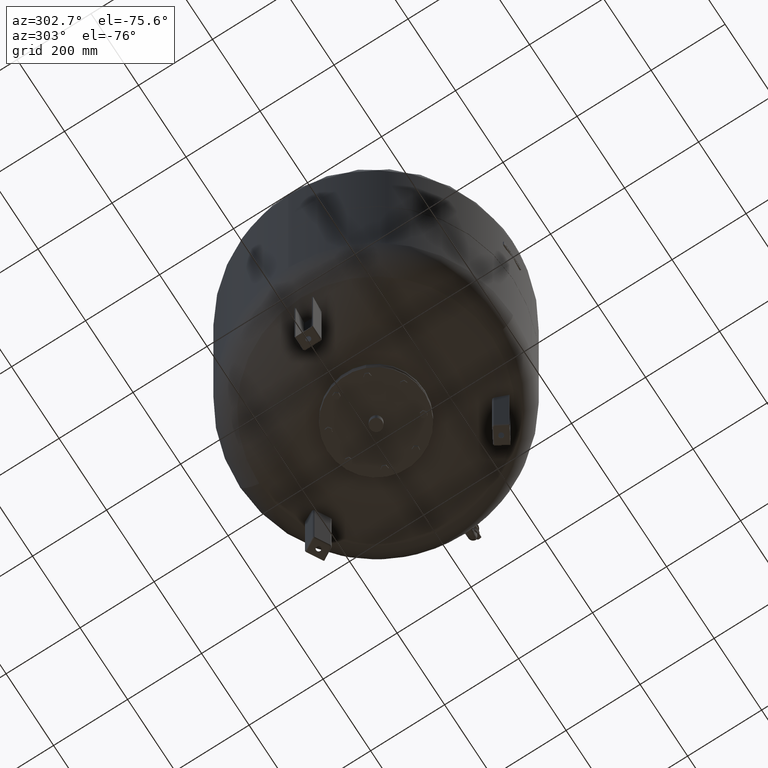
[diagram: clean part render]
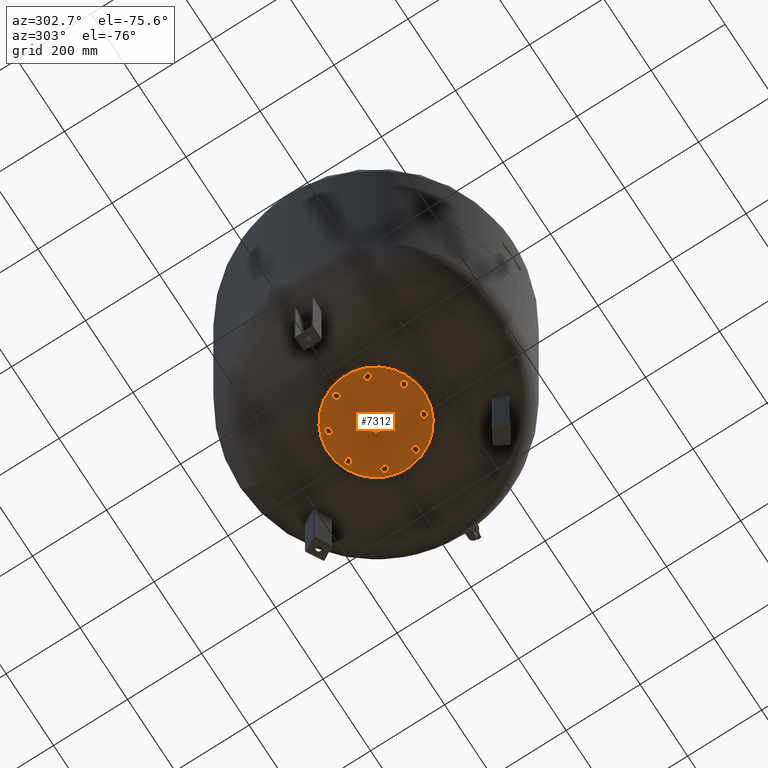
[diagram: same view with one face highlighted and labeled with its STEP entity id]
A machine part, auxiliary view. The second image highlights one B-rep face of the part: STEP entity #7312.
In plain terms, the highlighted planar face has unit normal (0, 0, 1).
Its self-contained STEP definition (entity closure, byte-faithful):
#3340=CARTESIAN_POINT('',(-120.104339226467270,-49.748846207461675,171.0));
#3341=VERTEX_POINT('',#3340);
#3350=CARTESIAN_POINT('',(120.104339226467290,49.748846207461661,171.0));
#3351=VERTEX_POINT('',#3350);
#3352=CARTESIAN_POINT('',(1.171630E-015,-2.828565E-015,171.0));
#3353=DIRECTION('',(0.0,0.0,1.0));
#3354=DIRECTION('',(-0.923879532511287,-0.382683432365090,0.0));
#3355=AXIS2_PLACEMENT_3D('',#3352,#3353,#3354);
#3356=CIRCLE('',#3355,130.0);
#3357=EDGE_CURVE('',#3341,#3351,#3356,.T.);
#3384=CARTESIAN_POINT('',(-15.567370122815184,-6.448215835351768,171.0));
#3385=VERTEX_POINT('',#3384);
#3401=CARTESIAN_POINT('',(15.567370122815188,6.448215835351761,171.0));
#3402=VERTEX_POINT('',#3401);
#3409=CARTESIAN_POINT('',(1.171630E-015,-2.828565E-015,171.0));
#3410=DIRECTION('',(0.0,0.0,1.0));
#3411=DIRECTION('',(-0.923879532511287,-0.382683432365090,0.0));
#3412=AXIS2_PLACEMENT_3D('',#3409,#3410,#3411);
#3413=CIRCLE('',#3412,16.850000000000005);
#3414=EDGE_CURVE('',#3385,#3402,#3413,.T.);
#5260=CARTESIAN_POINT('',(-34.766493326885701,-96.003251377674417,171.0));
#5261=VERTEX_POINT('',#5260);
#5262=CARTESIAN_POINT('',(-43.300926875592538,-92.468173254628084,171.0));
#5263=VERTEX_POINT('',#5262);
#5264=CARTESIAN_POINT('',(-34.766493326885701,-96.003251377674417,171.0));
#5265=DIRECTION('',(-0.923879532511286,0.382683432365091,0.0));
#5266=VECTOR('',#5265,9.237604307034024);
#5267=LINE('',#5264,#5266);
#5268=EDGE_CURVE('',#5261,#5263,#5267,.T.);
#5300=CARTESIAN_POINT('',(-33.560744011452989,-105.161826699287860,171.0));
#5301=VERTEX_POINT('',#5300);
#5302=CARTESIAN_POINT('',(-33.560744011452989,-105.161826699287860,171.0));
#5303=DIRECTION('',(-0.130526192220053,0.991444861373810,0.0));
#5304=VECTOR('',#5303,9.237604307034005);
#5305=LINE('',#5302,#5304);
#5306=EDGE_CURVE('',#5301,#5261,#5305,.T.);
#5331=CARTESIAN_POINT('',(-40.889428244727128,-110.785323897855010,171.0));
#5332=VERTEX_POINT('',#5331);
#5333=CARTESIAN_POINT('',(-40.889428244727128,-110.785323897855010,171.0));
#5334=DIRECTION('',(0.793353340291235,0.608761429008721,0.0));
#5335=VECTOR('',#5334,9.237604307034024);
#5336=LINE('',#5333,#5335);
#5337=EDGE_CURVE('',#5332,#5301,#5336,.T.);
#5362=CARTESIAN_POINT('',(-49.423861793433986,-107.250245774808700,171.0));
#5363=VERTEX_POINT('',#5362);
#5364=CARTESIAN_POINT('',(-49.423861793433986,-107.250245774808700,171.0));
#5365=DIRECTION('',(0.923879532511287,-0.382683432365088,0.0));
#5366=VECTOR('',#5365,9.237604307034033);
#5367=LINE('',#5364,#5366);
#5368=EDGE_CURVE('',#5363,#5332,#5367,.T.);
#5393=CARTESIAN_POINT('',(-50.629611108866676,-98.091670453195235,171.0));
#5394=VERTEX_POINT('',#5393);
#5395=CARTESIAN_POINT('',(-43.300926875592538,-92.468173254628084,171.0));
#5396=DIRECTION('',(-0.793353340291235,-0.608761429008721,0.0));
#5397=VECTOR('',#5396,9.237604307034024);
#5398=LINE('',#5395,#5397);
#5399=EDGE_CURVE('',#5263,#5394,#5398,.T.);
#5424=CARTESIAN_POINT('',(-50.629611108866676,-98.091670453195235,171.0));
#5425=DIRECTION('',(0.130526192220051,-0.991444861373811,0.0));
#5426=VECTOR('',#5425,9.237604307034030);
#5427=LINE('',#5424,#5426);
#5428=EDGE_CURVE('',#5394,#5363,#5427,.T.);
#5506=CARTESIAN_POINT('',(43.300926875592602,-92.468173254628084,171.0));
#5507=VERTEX_POINT('',#5506);
#5508=CARTESIAN_POINT('',(34.766493326885758,-96.003251377674403,171.0));
#5509=VERTEX_POINT('',#5508);
#5510=CARTESIAN_POINT('',(43.300926875592602,-92.468173254628084,171.0));
#5511=DIRECTION('',(-0.923879532511287,-0.382683432365090,0.0));
#5512=VECTOR('',#5511,9.237604307034026);
#5513=LINE('',#5510,#5512);
#5514=EDGE_CURVE('',#5507,#5509,#5513,.T.);
#5546=CARTESIAN_POINT('',(50.629611108866733,-98.091670453195221,171.0));
#5547=VERTEX_POINT('',#5546);
#5548=CARTESIAN_POINT('',(50.629611108866733,-98.091670453195221,171.0));
#5549=DIRECTION('',(-0.793353340291235,0.608761429008721,0.0));
#5550=VECTOR('',#5549,9.237604307034008);
#5551=LINE('',#5548,#5550);
#5552=EDGE_CURVE('',#5547,#5507,#5551,.T.);
#5577=CARTESIAN_POINT('',(49.423861793434035,-107.250245774808680,171.0));
#5578=VERTEX_POINT('',#5577);
#5579=CARTESIAN_POINT('',(49.423861793434035,-107.250245774808680,171.0));
#5580=DIRECTION('',(0.130526192220051,0.991444861373810,0.0));
#5581=VECTOR('',#5580,9.237604307034017);
#5582=LINE('',#5579,#5581);
#5583=EDGE_CURVE('',#5578,#5547,#5582,.T.);
#5608=CARTESIAN_POINT('',(40.889428244727185,-110.785323897854990,171.0));
#5609=VERTEX_POINT('',#5608);
#5610=CARTESIAN_POINT('',(40.889428244727185,-110.785323897854990,171.0));
#5611=DIRECTION('',(0.923879532511287,0.382683432365090,0.0));
#5612=VECTOR('',#5611,9.237604307034031);
#5613=LINE('',#5610,#5612);
#5614=EDGE_CURVE('',#5609,#5578,#5613,.T.);
#5639=CARTESIAN_POINT('',(33.560744011453068,-105.161826699287840,171.0));
#5640=VERTEX_POINT('',#5639);
#5641=CARTESIAN_POINT('',(34.766493326885758,-96.003251377674403,171.0));
#5642=DIRECTION('',(-0.130526192220051,-0.991444861373810,0.0));
#5643=VECTOR('',#5642,9.237604307034003);
#5644=LINE('',#5641,#5643);
#5645=EDGE_CURVE('',#5509,#5640,#5644,.T.);
#5670=CARTESIAN_POINT('',(33.560744011453068,-105.161826699287840,171.0));
#5671=DIRECTION('',(0.793353340291234,-0.608761429008722,0.0));
#5672=VECTOR('',#5671,9.237604307034006);
#5673=LINE('',#5670,#5672);
#5674=EDGE_CURVE('',#5640,#5609,#5673,.T.);
#5752=CARTESIAN_POINT('',(96.003251377674403,-34.766493326885708,171.0));
#5753=VERTEX_POINT('',#5752);
#5754=CARTESIAN_POINT('',(92.468173254628098,-43.300926875592552,171.0));
#5755=VERTEX_POINT('',#5754);
#5756=CARTESIAN_POINT('',(96.003251377674403,-34.766493326885708,171.0));
#5757=DIRECTION('',(-0.382683432365089,-0.923879532511287,0.0));
#5758=VECTOR('',#5757,9.237604307034019);
#5759=LINE('',#5756,#5758);
#5760=EDGE_CURVE('',#5753,#5755,#5759,.T.);
#5792=CARTESIAN_POINT('',(105.161826699287870,-33.560744011453004,171.0));
#5793=VERTEX_POINT('',#5792);
#5794=CARTESIAN_POINT('',(105.161826699287870,-33.560744011453004,171.0));
#5795=DIRECTION('',(-0.991444861373810,-0.130526192220052,0.0));
#5796=VECTOR('',#5795,9.237604307034031);
#5797=LINE('',#5794,#5796);
#5798=EDGE_CURVE('',#5793,#5753,#5797,.T.);
#5823=CARTESIAN_POINT('',(110.785323897855010,-40.889428244727164,171.0));
#5824=VERTEX_POINT('',#5823);
#5825=CARTESIAN_POINT('',(110.785323897855010,-40.889428244727164,171.0));
#5826=DIRECTION('',(-0.608761429008719,0.793353340291236,0.0));
#5827=VECTOR('',#5826,9.237604307034031);
#5828=LINE('',#5825,#5827);
#5829=EDGE_CURVE('',#5824,#5793,#5828,.T.);
#5854=CARTESIAN_POINT('',(107.250245774808690,-49.423861793434014,171.0));
#5855=VERTEX_POINT('',#5854);
#5856=CARTESIAN_POINT('',(107.250245774808690,-49.423861793434014,171.0));
#5857=DIRECTION('',(0.382683432365090,0.923879532511287,0.0));
#5858=VECTOR('',#5857,9.237604307034031);
#5859=LINE('',#5856,#5858);
#5860=EDGE_CURVE('',#5855,#5824,#5859,.T.);
#5885=CARTESIAN_POINT('',(98.091670453195235,-50.629611108866698,171.0));
#5886=VERTEX_POINT('',#5885);
#5887=CARTESIAN_POINT('',(92.468173254628098,-43.300926875592552,171.0));
#5888=DIRECTION('',(0.608761429008720,-0.793353340291236,0.0));
#5889=VECTOR('',#5888,9.237604307034021);
#5890=LINE('',#5887,#5889);
#5891=EDGE_CURVE('',#5755,#5886,#5890,.T.);
#5916=CARTESIAN_POINT('',(98.091670453195235,-50.629611108866698,171.0));
#5917=DIRECTION('',(0.991444861373811,0.130526192220050,0.0));
#5918=VECTOR('',#5917,9.237604307034015);
#5919=LINE('',#5916,#5918);
#5920=EDGE_CURVE('',#5886,#5855,#5919,.T.);
#5998=CARTESIAN_POINT('',(92.468173254628084,43.300926875592594,171.0));
#5999=VERTEX_POINT('',#5998);
#6000=CARTESIAN_POINT('',(96.003251377674403,34.766493326885758,171.0));
#6001=VERTEX_POINT('',#6000);
#6002=CARTESIAN_POINT('',(92.468173254628084,43.300926875592594,171.0));
#6003=DIRECTION('',(0.382683432365090,-0.923879532511287,0.0));
#6004=VECTOR('',#6003,9.237604307034019);
#6005=LINE('',#6002,#6004);
#6006=EDGE_CURVE('',#5999,#6001,#6005,.T.);
#6038=CARTESIAN_POINT('',(98.091670453195221,50.629611108866733,171.0));
#6039=VERTEX_POINT('',#6038);
#6040=CARTESIAN_POINT('',(98.091670453195221,50.629611108866733,171.0));
#6041=DIRECTION('',(-0.608761429008720,-0.793353340291235,0.0));
#6042=VECTOR('',#6041,9.237604307034015);
#6043=LINE('',#6040,#6042);
#6044=EDGE_CURVE('',#6039,#5999,#6043,.T.);
#6069=CARTESIAN_POINT('',(107.250245774808680,49.423861793434028,171.0));
#6070=VERTEX_POINT('',#6069);
#6071=CARTESIAN_POINT('',(107.250245774808680,49.423861793434028,171.0));
#6072=DIRECTION('',(-0.991444861373810,0.130526192220052,0.0));
#6073=VECTOR('',#6072,9.237604307034019);
#6074=LINE('',#6071,#6073);
#6075=EDGE_CURVE('',#6070,#6039,#6074,.T.);
#6100=CARTESIAN_POINT('',(110.785323897854990,40.889428244727178,171.0));
#6101=VERTEX_POINT('',#6100);
#6102=CARTESIAN_POINT('',(110.785323897854990,40.889428244727178,171.0));
#6103=DIRECTION('',(-0.382683432365090,0.923879532511287,0.0));
#6104=VECTOR('',#6103,9.237604307034031);
#6105=LINE('',#6102,#6104);
#6106=EDGE_CURVE('',#6101,#6070,#6105,.T.);
#6131=CARTESIAN_POINT('',(105.161826699287840,33.560744011453060,171.0));
#6132=VERTEX_POINT('',#6131);
#6133=CARTESIAN_POINT('',(96.003251377674403,34.766493326885758,171.0));
#6134=DIRECTION('',(0.991444861373810,-0.130526192220052,0.0));
#6135=VECTOR('',#6134,9.237604307034003);
#6136=LINE('',#6133,#6135);
#6137=EDGE_CURVE('',#6001,#6132,#6136,.T.);
#6162=CARTESIAN_POINT('',(105.161826699287840,33.560744011453060,171.0));
#6163=DIRECTION('',(0.608761429008722,0.793353340291234,0.0));
#6164=VECTOR('',#6163,9.237604307034006);
#6165=LINE('',#6162,#6164);
#6166=EDGE_CURVE('',#6132,#6101,#6165,.T.);
#6244=CARTESIAN_POINT('',(34.766493326885723,96.003251377674417,171.0));
#6245=VERTEX_POINT('',#6244);
#6246=CARTESIAN_POINT('',(43.300926875592552,92.468173254628084,171.0));
#6247=VERTEX_POINT('',#6246);
#6248=CARTESIAN_POINT('',(34.766493326885723,96.003251377674417,171.0));
#6249=DIRECTION('',(0.923879532511286,-0.382683432365092,0.0));
#6250=VECTOR('',#6249,9.237604307034017);
#6251=LINE('',#6248,#6250);
#6252=EDGE_CURVE('',#6245,#6247,#6251,.T.);
#6284=CARTESIAN_POINT('',(33.560744011453025,105.161826699287860,171.0));
#6285=VERTEX_POINT('',#6284);
#6286=CARTESIAN_POINT('',(33.560744011453025,105.161826699287860,171.0));
#6287=DIRECTION('',(0.130526192220052,-0.991444861373810,0.0));
#6288=VECTOR('',#6287,9.237604307034003);
#6289=LINE('',#6286,#6288);
#6290=EDGE_CURVE('',#6285,#6245,#6289,.T.);
#6315=CARTESIAN_POINT('',(40.889428244727164,110.785323897855010,171.0));
#6316=VERTEX_POINT('',#6315);
#6317=CARTESIAN_POINT('',(40.889428244727164,110.785323897855010,171.0));
#6318=DIRECTION('',(-0.793353340291235,-0.608761429008721,0.0));
#6319=VECTOR('',#6318,9.237604307034024);
#6320=LINE('',#6317,#6319);
#6321=EDGE_CURVE('',#6316,#6285,#6320,.T.);
#6346=CARTESIAN_POINT('',(49.423861793434014,107.250245774808690,171.0));
#6347=VERTEX_POINT('',#6346);
#6348=CARTESIAN_POINT('',(49.423861793434014,107.250245774808690,171.0));
#6349=DIRECTION('',(-0.923879532511287,0.382683432365090,0.0));
#6350=VECTOR('',#6349,9.237604307034031);
#6351=LINE('',#6348,#6350);
#6352=EDGE_CURVE('',#6347,#6316,#6351,.T.);
#6377=CARTESIAN_POINT('',(50.629611108866698,98.091670453195235,171.0));
#6378=VERTEX_POINT('',#6377);
#6379=CARTESIAN_POINT('',(43.300926875592552,92.468173254628084,171.0));
#6380=DIRECTION('',(0.793353340291235,0.608761429008721,0.0));
#6381=VECTOR('',#6380,9.237604307034030);
#6382=LINE('',#6379,#6381);
#6383=EDGE_CURVE('',#6247,#6378,#6382,.T.);
#6408=CARTESIAN_POINT('',(50.629611108866698,98.091670453195235,171.0));
#6409=DIRECTION('',(-0.130526192220050,0.991444861373811,0.0));
#6410=VECTOR('',#6409,9.237604307034015);
#6411=LINE('',#6408,#6410);
#6412=EDGE_CURVE('',#6378,#6347,#6411,.T.);
#6490=CARTESIAN_POINT('',(-43.300926875592580,92.468173254628084,171.0));
#6491=VERTEX_POINT('',#6490);
#6492=CARTESIAN_POINT('',(-34.766493326885751,96.003251377674403,171.0));
#6493=VERTEX_POINT('',#6492);
#6494=CARTESIAN_POINT('',(-43.300926875592580,92.468173254628084,171.0));
#6495=DIRECTION('',(0.923879532511287,0.382683432365090,0.0));
#6496=VECTOR('',#6495,9.237604307034012);
#6497=LINE('',#6494,#6496);
#6498=EDGE_CURVE('',#6491,#6493,#6497,.T.);
#6530=CARTESIAN_POINT('',(-50.629611108866705,98.091670453195235,171.0));
#6531=VERTEX_POINT('',#6530);
#6532=CARTESIAN_POINT('',(-50.629611108866705,98.091670453195235,171.0));
#6533=DIRECTION('',(0.793353340291234,-0.608761429008722,0.0));
#6534=VECTOR('',#6533,9.237604307034012);
#6535=LINE('',#6532,#6534);
#6536=EDGE_CURVE('',#6531,#6491,#6535,.T.);
#6561=CARTESIAN_POINT('',(-49.423861793434014,107.250245774808680,171.0));
#6562=VERTEX_POINT('',#6561);
#6563=CARTESIAN_POINT('',(-49.423861793434014,107.250245774808680,171.0));
#6564=DIRECTION('',(-0.130526192220051,-0.991444861373810,0.0));
#6565=VECTOR('',#6564,9.237604307034003);
#6566=LINE('',#6563,#6565);
#6567=EDGE_CURVE('',#6562,#6531,#6566,.T.);
#6592=CARTESIAN_POINT('',(-40.889428244727171,110.785323897855010,171.0));
#6593=VERTEX_POINT('',#6592);
#6594=CARTESIAN_POINT('',(-40.889428244727171,110.785323897855010,171.0));
#6595=DIRECTION('',(-0.923879532511286,-0.382683432365091,0.0));
#6596=VECTOR('',#6595,9.237604307034031);
#6597=LINE('',#6594,#6596);
#6598=EDGE_CURVE('',#6593,#6562,#6597,.T.);
#6623=CARTESIAN_POINT('',(-33.560744011453032,105.161826699287860,171.0));
#6624=VERTEX_POINT('',#6623);
#6625=CARTESIAN_POINT('',(-34.766493326885751,96.003251377674403,171.0));
#6626=DIRECTION('',(0.130526192220054,0.991444861373810,0.0));
#6627=VECTOR('',#6626,9.237604307034019);
#6628=LINE('',#6625,#6627);
#6629=EDGE_CURVE('',#6493,#6624,#6628,.T.);
#6654=CARTESIAN_POINT('',(-33.560744011453032,105.161826699287860,171.0));
#6655=DIRECTION('',(-0.793353340291235,0.608761429008721,0.0));
#6656=VECTOR('',#6655,9.237604307034024);
#6657=LINE('',#6654,#6656);
#6658=EDGE_CURVE('',#6624,#6593,#6657,.T.);
#6736=CARTESIAN_POINT('',(-96.003251377674417,34.766493326885723,171.0));
#6737=VERTEX_POINT('',#6736);
#6738=CARTESIAN_POINT('',(-92.468173254628084,43.300926875592552,171.0));
#6739=VERTEX_POINT('',#6738);
#6740=CARTESIAN_POINT('',(-96.003251377674417,34.766493326885723,171.0));
#6741=DIRECTION('',(0.382683432365092,0.923879532511286,0.0));
#6742=VECTOR('',#6741,9.237604307034017);
#6743=LINE('',#6740,#6742);
#6744=EDGE_CURVE('',#6737,#6739,#6743,.T.);
#6776=CARTESIAN_POINT('',(-105.161826699287860,33.560744011453025,171.0));
#6777=VERTEX_POINT('',#6776);
#6778=CARTESIAN_POINT('',(-105.161826699287860,33.560744011453025,171.0));
#6779=DIRECTION('',(0.991444861373810,0.130526192220052,0.0));
#6780=VECTOR('',#6779,9.237604307034003);
#6781=LINE('',#6778,#6780);
#6782=EDGE_CURVE('',#6777,#6737,#6781,.T.);
#6807=CARTESIAN_POINT('',(-110.785323897855010,40.889428244727164,171.0));
#6808=VERTEX_POINT('',#6807);
#6809=CARTESIAN_POINT('',(-110.785323897855010,40.889428244727164,171.0));
#6810=DIRECTION('',(0.608761429008721,-0.793353340291235,0.0));
#6811=VECTOR('',#6810,9.237604307034024);
#6812=LINE('',#6809,#6811);
#6813=EDGE_CURVE('',#6808,#6777,#6812,.T.);
#6838=CARTESIAN_POINT('',(-107.250245774808690,49.423861793434014,171.0));
#6839=VERTEX_POINT('',#6838);
#6840=CARTESIAN_POINT('',(-107.250245774808690,49.423861793434014,171.0));
#6841=DIRECTION('',(-0.382683432365090,-0.923879532511287,0.0));
#6842=VECTOR('',#6841,9.237604307034031);
#6843=LINE('',#6840,#6842);
#6844=EDGE_CURVE('',#6839,#6808,#6843,.T.);
#6869=CARTESIAN_POINT('',(-98.091670453195235,50.629611108866698,171.0));
#6870=VERTEX_POINT('',#6869);
#6871=CARTESIAN_POINT('',(-92.468173254628084,43.300926875592552,171.0));
#6872=DIRECTION('',(-0.608761429008721,0.793353340291235,0.0));
#6873=VECTOR('',#6872,9.237604307034030);
#6874=LINE('',#6871,#6873);
#6875=EDGE_CURVE('',#6739,#6870,#6874,.T.);
#6900=CARTESIAN_POINT('',(-98.091670453195235,50.629611108866698,171.0));
#6901=DIRECTION('',(-0.991444861373811,-0.130526192220050,0.0));
#6902=VECTOR('',#6901,9.237604307034015);
#6903=LINE('',#6900,#6902);
#6904=EDGE_CURVE('',#6870,#6839,#6903,.T.);
#6982=CARTESIAN_POINT('',(-92.468173254628084,-43.300926875592587,171.0));
#6983=VERTEX_POINT('',#6982);
#6984=CARTESIAN_POINT('',(-96.003251377674403,-34.766493326885744,171.0));
#6985=VERTEX_POINT('',#6984);
#6986=CARTESIAN_POINT('',(-92.468173254628084,-43.300926875592587,171.0));
#6987=DIRECTION('',(-0.382683432365090,0.923879532511287,0.0));
#6988=VECTOR('',#6987,9.237604307034026);
#6989=LINE('',#6986,#6988);
#6990=EDGE_CURVE('',#6983,#6985,#6989,.T.);
#7022=CARTESIAN_POINT('',(-98.091670453195221,-50.629611108866719,171.0));
#7023=VERTEX_POINT('',#7022);
#7024=CARTESIAN_POINT('',(-98.091670453195221,-50.629611108866719,171.0));
#7025=DIRECTION('',(0.608761429008721,0.793353340291235,0.0));
#7026=VECTOR('',#7025,9.237604307034008);
#7027=LINE('',#7024,#7026);
#7028=EDGE_CURVE('',#7023,#6983,#7027,.T.);
#7053=CARTESIAN_POINT('',(-107.250245774808690,-49.423861793434014,171.0));
#7054=VERTEX_POINT('',#7053);
#7055=CARTESIAN_POINT('',(-107.250245774808690,-49.423861793434014,171.0));
#7056=DIRECTION('',(0.991444861373810,-0.130526192220052,0.0));
#7057=VECTOR('',#7056,9.237604307034031);
#7058=LINE('',#7055,#7057);
#7059=EDGE_CURVE('',#7054,#7023,#7058,.T.);
#7084=CARTESIAN_POINT('',(-110.785323897855010,-40.889428244727164,171.0));
#7085=VERTEX_POINT('',#7084);
#7086=CARTESIAN_POINT('',(-110.785323897855010,-40.889428244727164,171.0));
#7087=DIRECTION('',(0.382683432365090,-0.923879532511287,0.0));
#7088=VECTOR('',#7087,9.237604307034031);
#7089=LINE('',#7086,#7088);
#7090=EDGE_CURVE('',#7085,#7054,#7089,.T.);
#7115=CARTESIAN_POINT('',(-105.161826699287860,-33.560744011453039,171.0));
#7116=VERTEX_POINT('',#7115);
#7117=CARTESIAN_POINT('',(-96.003251377674403,-34.766493326885744,171.0));
#7118=DIRECTION('',(-0.991444861373810,0.130526192220052,0.0));
#7119=VECTOR('',#7118,9.237604307034019);
#7120=LINE('',#7117,#7119);
#7121=EDGE_CURVE('',#6985,#7116,#7120,.T.);
#7146=CARTESIAN_POINT('',(-105.161826699287860,-33.560744011453039,171.0));
#7147=DIRECTION('',(-0.608761429008722,-0.793353340291234,0.0));
#7148=VECTOR('',#7147,9.237604307034012);
#7149=LINE('',#7146,#7148);
#7150=EDGE_CURVE('',#7116,#7085,#7149,.T.);
#7183=CARTESIAN_POINT('',(1.171630E-015,-2.828565E-015,171.0));
#7184=DIRECTION('',(0.0,0.0,1.0));
#7185=DIRECTION('',(-0.923879532511287,-0.382683432365090,0.0));
#7186=AXIS2_PLACEMENT_3D('',#7183,#7184,#7185);
#7187=CIRCLE('',#7186,16.850000000000005);
#7188=EDGE_CURVE('',#3402,#3385,#7187,.T.);
#7225=CARTESIAN_POINT('',(1.171630E-015,-2.828565E-015,171.0));
#7226=DIRECTION('',(0.0,0.0,1.0));
#7227=DIRECTION('',(-0.923879532511287,-0.382683432365090,0.0));
#7228=AXIS2_PLACEMENT_3D('',#7225,#7226,#7227);
#7229=CIRCLE('',#7228,130.0);
#7230=EDGE_CURVE('',#3351,#3341,#7229,.T.);
#7235=CARTESIAN_POINT('',(1.171630E-015,-2.828565E-015,171.0));
#7236=DIRECTION('',(0.0,0.0,1.0));
#7237=DIRECTION('',(-0.923879532511287,-0.382683432365090,0.0));
#7238=AXIS2_PLACEMENT_3D('',#7235,#7236,#7237);
#7239=PLANE('',#7238);
#7240=ORIENTED_EDGE('',*,*,#7230,.F.);
#7241=ORIENTED_EDGE('',*,*,#3357,.F.);
#7242=EDGE_LOOP('',(#7240,#7241));
#7243=FACE_OUTER_BOUND('',#7242,.T.);
#7244=ORIENTED_EDGE('',*,*,#5268,.T.);
#7245=ORIENTED_EDGE('',*,*,#5399,.T.);
#7246=ORIENTED_EDGE('',*,*,#5428,.T.);
#7247=ORIENTED_EDGE('',*,*,#5368,.T.);
#7248=ORIENTED_EDGE('',*,*,#5337,.T.);
#7249=ORIENTED_EDGE('',*,*,#5306,.T.);
#7250=EDGE_LOOP('',(#7244,#7245,#7246,#7247,#7248,#7249));
#7251=FACE_BOUND('',#7250,.T.);
#7252=ORIENTED_EDGE('',*,*,#5514,.T.);
#7253=ORIENTED_EDGE('',*,*,#5645,.T.);
#7254=ORIENTED_EDGE('',*,*,#5674,.T.);
#7255=ORIENTED_EDGE('',*,*,#5614,.T.);
#7256=ORIENTED_EDGE('',*,*,#5583,.T.);
#7257=ORIENTED_EDGE('',*,*,#5552,.T.);
#7258=EDGE_LOOP('',(#7252,#7253,#7254,#7255,#7256,#7257));
#7259=FACE_BOUND('',#7258,.T.);
#7260=ORIENTED_EDGE('',*,*,#5760,.T.);
#7261=ORIENTED_EDGE('',*,*,#5891,.T.);
#7262=ORIENTED_EDGE('',*,*,#5920,.T.);
#7263=ORIENTED_EDGE('',*,*,#5860,.T.);
#7264=ORIENTED_EDGE('',*,*,#5829,.T.);
#7265=ORIENTED_EDGE('',*,*,#5798,.T.);
#7266=EDGE_LOOP('',(#7260,#7261,#7262,#7263,#7264,#7265));
#7267=FACE_BOUND('',#7266,.T.);
#7268=ORIENTED_EDGE('',*,*,#6006,.T.);
#7269=ORIENTED_EDGE('',*,*,#6137,.T.);
#7270=ORIENTED_EDGE('',*,*,#6166,.T.);
#7271=ORIENTED_EDGE('',*,*,#6106,.T.);
#7272=ORIENTED_EDGE('',*,*,#6075,.T.);
#7273=ORIENTED_EDGE('',*,*,#6044,.T.);
#7274=EDGE_LOOP('',(#7268,#7269,#7270,#7271,#7272,#7273));
#7275=FACE_BOUND('',#7274,.T.);
#7276=ORIENTED_EDGE('',*,*,#6252,.T.);
#7277=ORIENTED_EDGE('',*,*,#6383,.T.);
#7278=ORIENTED_EDGE('',*,*,#6412,.T.);
#7279=ORIENTED_EDGE('',*,*,#6352,.T.);
#7280=ORIENTED_EDGE('',*,*,#6321,.T.);
#7281=ORIENTED_EDGE('',*,*,#6290,.T.);
#7282=EDGE_LOOP('',(#7276,#7277,#7278,#7279,#7280,#7281));
#7283=FACE_BOUND('',#7282,.T.);
#7284=ORIENTED_EDGE('',*,*,#6498,.T.);
#7285=ORIENTED_EDGE('',*,*,#6629,.T.);
#7286=ORIENTED_EDGE('',*,*,#6658,.T.);
#7287=ORIENTED_EDGE('',*,*,#6598,.T.);
#7288=ORIENTED_EDGE('',*,*,#6567,.T.);
#7289=ORIENTED_EDGE('',*,*,#6536,.T.);
#7290=EDGE_LOOP('',(#7284,#7285,#7286,#7287,#7288,#7289));
#7291=FACE_BOUND('',#7290,.T.);
#7292=ORIENTED_EDGE('',*,*,#6744,.T.);
#7293=ORIENTED_EDGE('',*,*,#6875,.T.);
#7294=ORIENTED_EDGE('',*,*,#6904,.T.);
#7295=ORIENTED_EDGE('',*,*,#6844,.T.);
#7296=ORIENTED_EDGE('',*,*,#6813,.T.);
#7297=ORIENTED_EDGE('',*,*,#6782,.T.);
#7298=EDGE_LOOP('',(#7292,#7293,#7294,#7295,#7296,#7297));
#7299=FACE_BOUND('',#7298,.T.);
#7300=ORIENTED_EDGE('',*,*,#6990,.T.);
#7301=ORIENTED_EDGE('',*,*,#7121,.T.);
#7302=ORIENTED_EDGE('',*,*,#7150,.T.);
#7303=ORIENTED_EDGE('',*,*,#7090,.T.);
#7304=ORIENTED_EDGE('',*,*,#7059,.T.);
#7305=ORIENTED_EDGE('',*,*,#7028,.T.);
#7306=EDGE_LOOP('',(#7300,#7301,#7302,#7303,#7304,#7305));
#7307=FACE_BOUND('',#7306,.T.);
#7308=ORIENTED_EDGE('',*,*,#7188,.T.);
#7309=ORIENTED_EDGE('',*,*,#3414,.T.);
#7310=EDGE_LOOP('',(#7308,#7309));
#7311=FACE_BOUND('',#7310,.T.);
#7312=ADVANCED_FACE('',(#7243,#7251,#7259,#7267,#7275,#7283,#7291,#7299,#7307,#7311),#7239,.F.);